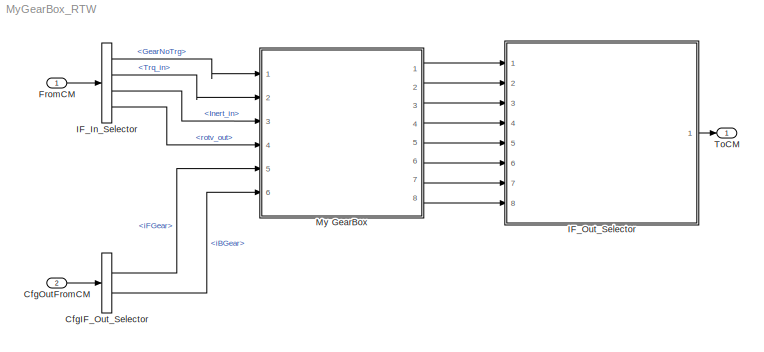
MODEL MyGearBox_RTW
KIND model
CONFIG InitFcn = vehicle = 'Car'; if ~length(which('cmcmd')), cmenv; end\nMyGearBox_RTW_bus
CONFIG PreLoadFcn = vehicle = 'Car'; if ~length(which('cmcmd')), cmenv; end\nMyGearBox_RTW_bus
BLOCK [BusSelector] CfgIF_Out_Selector
  OutputSignals = iFGear,iBGear
  Ports = [1, 2]
  SID = 45
BLOCK [Inport] CfgOutFromCM
  OutDataTypeStr = Bus: cmPTGearBoxCfgOut
  Port = 2
  SID = 8
BLOCK [Inport] FromCM
  OutDataTypeStr = Bus: cmPTGearBoxIn
  SID = 1
BLOCK [BusSelector] IF_In_Selector
  OutputSignals = GearNoTrg,Trq_in,Inert_in,rotv_out
  Ports = [1, 4]
  SID = 46
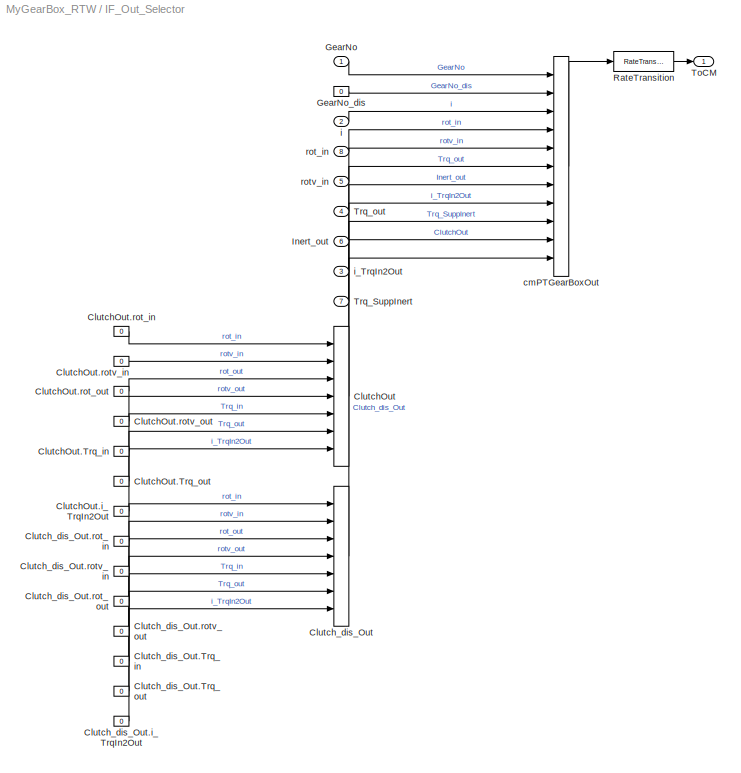
BLOCK [SubSystem] IF_Out_Selector
  OpenFcn = cmSignalSelect('SignalSelection_CB',gcb)
  Ports = [8, 1]
  RequestExecContextInheritance = off
  SID = 5
  UserData = DataTag0
  UserDataPersistent = on
BLOCK [BusCreator] IF_Out_Selector/ClutchOut
  InheritFromInputs = on
  Inputs = 7
  Ports = [7, 1]
  SID = 21
BLOCK [Constant] IF_Out_Selector/ClutchOut.Trq_in
  SID = 26
  Value = 0
BLOCK [Constant] IF_Out_Selector/ClutchOut.Trq_out
  SID = 27
  Value = 0
BLOCK [Constant] IF_Out_Selector/ClutchOut.i_TrqIn2Out
  SID = 28
  Value = 0
BLOCK [Constant] IF_Out_Selector/ClutchOut.rot_in
  SID = 22
  Value = 0
BLOCK [Constant] IF_Out_Selector/ClutchOut.rot_out
  SID = 24
  Value = 0
BLOCK [Constant] IF_Out_Selector/ClutchOut.rotv_in
  SID = 23
  Value = 0
BLOCK [Constant] IF_Out_Selector/ClutchOut.rotv_out
  SID = 25
  Value = 0
BLOCK [BusCreator] IF_Out_Selector/Clutch_dis_Out
  InheritFromInputs = on
  Inputs = 7
  Ports = [7, 1]
  SID = 29
BLOCK [Constant] IF_Out_Selector/Clutch_dis_Out.Trq_in
  SID = 34
  Value = 0
BLOCK [Constant] IF_Out_Selector/Clutch_dis_Out.Trq_out
  SID = 35
  Value = 0
BLOCK [Constant] IF_Out_Selector/Clutch_dis_Out.i_TrqIn2Out
  SID = 36
  Value = 0
BLOCK [Constant] IF_Out_Selector/Clutch_dis_Out.rot_in
  SID = 30
  Value = 0
BLOCK [Constant] IF_Out_Selector/Clutch_dis_Out.rot_out
  SID = 32
  Value = 0
BLOCK [Constant] IF_Out_Selector/Clutch_dis_Out.rotv_in
  SID = 31
  Value = 0
BLOCK [Constant] IF_Out_Selector/Clutch_dis_Out.rotv_out
  SID = 33
  Value = 0
BLOCK [Inport] IF_Out_Selector/GearNo
  SID = 37
BLOCK [Constant] IF_Out_Selector/GearNo_dis
  SID = 13
  Value = 0
BLOCK [Inport] IF_Out_Selector/Inert_out
  Port = 6
  SID = 42
BLOCK [RateTransition] IF_Out_Selector/RateTransition
  OutPortSampleTime = str2num(get_param(bdroot,'FixedStep'))
  SID = 6
BLOCK [Outport] IF_Out_Selector/ToCM
  SID = 7
  VectorParamsAs1DForOutWhenUnconnected = off
BLOCK [Inport] IF_Out_Selector/Trq_SuppInert
  Port = 7
  SID = 43
BLOCK [Inport] IF_Out_Selector/Trq_out
  Port = 4
  SID = 40
BLOCK [BusCreator] IF_Out_Selector/cmPTGearBoxOut
  InheritFromInputs = on
  Inputs = 11
  Ports = [11, 1]
  SID = 11
BLOCK [Inport] IF_Out_Selector/i
  Port = 2
  SID = 38
BLOCK [Inport] IF_Out_Selector/i_TrqIn2Out
  Port = 3
  SID = 39
BLOCK [Inport] IF_Out_Selector/rot_in
  Port = 8
  SID = 44
BLOCK [Inport] IF_Out_Selector/rotv_in
  Port = 5
  SID = 41
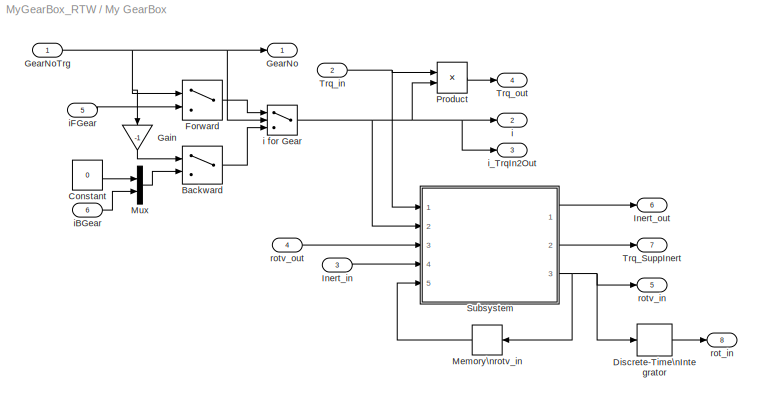
BLOCK [SubSystem] My GearBox
  Ports = [6, 8]
  RequestExecContextInheritance = off
  SID = 47
BLOCK [MultiPortSwitch] My GearBox/Backward
  DataPortOrder = Zero-based contiguous
  InputSameDT = off
  Inputs = 1
  Ports = [2, 1]
  SID = 54
  SaturateOnIntegerOverflow = off
  zeroidx = on
BLOCK [Constant] My GearBox/Constant
  SID = 55
  Value = 0
BLOCK [DiscreteIntegrator] My GearBox/Discrete-Time\nIntegrator
  ICPrevOutput = DiscIntNeverNeededParam
  ICPrevScaledInput = DiscIntNeverNeededParam
  IntegratorMethod = Integration: Backward Euler
  Ports = [1, 1]
  SID = 56
  SampleTime = -1
BLOCK [MultiPortSwitch] My GearBox/Forward
  InputSameDT = off
  Inputs = 1
  Ports = [2, 1]
  SID = 57
  SaturateOnIntegerOverflow = off
BLOCK [Gain] My GearBox/Gain
  Gain = -1
  NameLocation = left
  SID = 58
BLOCK [Outport] My GearBox/GearNo
  SID = 88
  VectorParamsAs1DForOutWhenUnconnected = off
BLOCK [Inport] My GearBox/GearNoTrg
  SID = 48
BLOCK [Inport] My GearBox/Inert_in
  Port = 3
  SID = 50
BLOCK [Outport] My GearBox/Inert_out
  Port = 6
  SID = 93
  VectorParamsAs1DForOutWhenUnconnected = off
BLOCK [Memory] My GearBox/Memory\nrotv_in
  SID = 59
BLOCK [Mux] My GearBox/Mux
  DisplayOption = bar
  Inputs = 2
  Ports = [2, 1]
  SID = 60
BLOCK [Product] My GearBox/Product
  Ports = [2, 1]
  RndMeth = Zero
  SID = 61
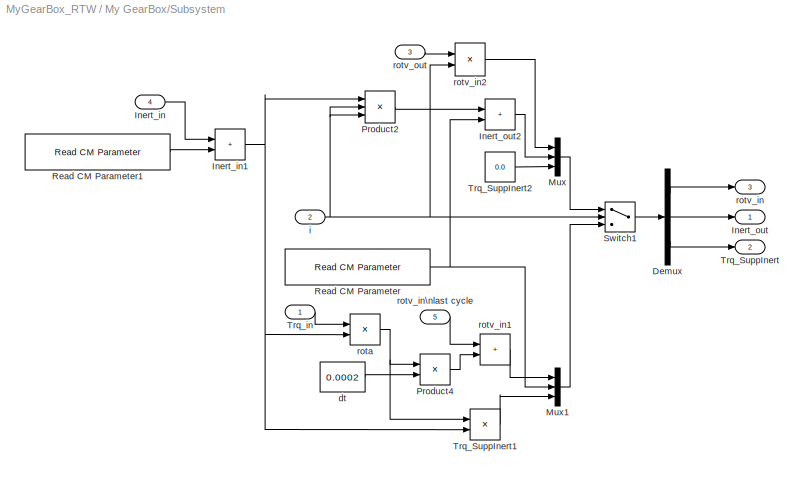
BLOCK [SubSystem] My GearBox/Subsystem
  Ports = [5, 3]
  RequestExecContextInheritance = off
  SID = 62
BLOCK [Demux] My GearBox/Subsystem/Demux
  Outputs = 3
  Ports = [1, 3]
  SID = 68
BLOCK [Inport] My GearBox/Subsystem/Inert_in
  Port = 4
  SID = 66
BLOCK [Sum] My GearBox/Subsystem/Inert_in1
  IconShape = rectangular
  Ports = [2, 1]
  SID = 69
BLOCK [Outport] My GearBox/Subsystem/Inert_out
  SID = 84
  VectorParamsAs1DForOutWhenUnconnected = off
BLOCK [Sum] My GearBox/Subsystem/Inert_out2
  IconShape = rectangular
  Ports = [2, 1]
  SID = 70
BLOCK [Mux] My GearBox/Subsystem/Mux
  DisplayOption = bar
  Inputs = 3
  Ports = [3, 1]
  SID = 71
BLOCK [Mux] My GearBox/Subsystem/Mux1
  DisplayOption = bar
  Inputs = 3
  Ports = [3, 1]
  SID = 72
BLOCK [Product] My GearBox/Subsystem/Product2
  Inputs = 3
  Ports = [3, 1]
  RndMeth = Zero
  SID = 73
BLOCK [Product] My GearBox/Subsystem/Product4
  Ports = [2, 1]
  RndMeth = Zero
  SID = 74
BLOCK [Reference] My GearBox/Subsystem/Read CM Parameter  REF=CarMaker4SL/Read CM Parameter
  Ports = [0, 1]
  SID = 75
  SourceBlock = CarMaker4SL/Read CM Parameter
  SourceProductName = CarMaker4SL
  SourceType = Read CarMaker Info File Parameter
  xdefaults = 0.05
  xfile = Vehicle
  xkey = PowerTrain.GearBox.I_out
  xmuxed = on
  xnout = 1
BLOCK [Reference] My GearBox/Subsystem/Read CM Parameter1  REF=CarMaker4SL/Read CM Parameter
  Ports = [0, 1]
  SID = 76
  SourceBlock = CarMaker4SL/Read CM Parameter
  SourceProductName = CarMaker4SL
  SourceType = Read CarMaker Info File Parameter
  xdefaults = 1e-4
  xfile = Vehicle
  xkey = PowerTrain.GearBox.I_in
  xmuxed = on
  xnout = 1
BLOCK [Switch] My GearBox/Subsystem/Switch1
  Criteria = u2 ~= 0
  InputSameDT = off
  SID = 77
  SaturateOnIntegerOverflow = off
BLOCK [Outport] My GearBox/Subsystem/Trq_SuppInert
  Port = 2
  SID = 85
  VectorParamsAs1DForOutWhenUnconnected = off
BLOCK [Product] My GearBox/Subsystem/Trq_SuppInert1
  Ports = [2, 1]
  RndMeth = Zero
  SID = 78
BLOCK [Constant] My GearBox/Subsystem/Trq_SuppInert2
  SID = 79
  Value = 0.0
BLOCK [Inport] My GearBox/Subsystem/Trq_in
  SID = 63
BLOCK [Constant] My GearBox/Subsystem/dt
  SID = 80
  Value = 0.0002
BLOCK [Inport] My GearBox/Subsystem/i
  Port = 2
  SID = 64
BLOCK [Product] My GearBox/Subsystem/rota
  Inputs = */
  Ports = [2, 1]
  SID = 81
BLOCK [Outport] My GearBox/Subsystem/rotv_in
  Port = 3
  SID = 86
  VectorParamsAs1DForOutWhenUnconnected = off
BLOCK [Sum] My GearBox/Subsystem/rotv_in1
  IconShape = rectangular
  Ports = [2, 1]
  SID = 82
BLOCK [Product] My GearBox/Subsystem/rotv_in2
  Ports = [2, 1]
  RndMeth = Zero
  SID = 83
BLOCK [Inport] My GearBox/Subsystem/rotv_in\nlast cycle
  Port = 5
  SID = 67
BLOCK [Inport] My GearBox/Subsystem/rotv_out
  Port = 3
  SID = 65
BLOCK [Outport] My GearBox/Trq_SuppInert
  Port = 7
  SID = 94
  VectorParamsAs1DForOutWhenUnconnected = off
BLOCK [Inport] My GearBox/Trq_in
  Port = 2
  SID = 49
BLOCK [Outport] My GearBox/Trq_out
  Port = 4
  SID = 91
  VectorParamsAs1DForOutWhenUnconnected = off
BLOCK [Outport] My GearBox/i
  Port = 2
  SID = 89
  VectorParamsAs1DForOutWhenUnconnected = off
BLOCK [Switch] My GearBox/i for Gear
  Criteria = u2 > Threshold
  InputSameDT = off
  SID = 87
  SaturateOnIntegerOverflow = off
BLOCK [Inport] My GearBox/iBGear
  Port = 6
  SID = 53
BLOCK [Inport] My GearBox/iFGear
  Port = 5
  SID = 52
BLOCK [Outport] My GearBox/i_TrqIn2Out
  Port = 3
  SID = 90
  VectorParamsAs1DForOutWhenUnconnected = off
BLOCK [Outport] My GearBox/rot_in
  Port = 8
  SID = 95
  VectorParamsAs1DForOutWhenUnconnected = off
BLOCK [Outport] My GearBox/rotv_in
  Port = 5
  SID = 92
  VectorParamsAs1DForOutWhenUnconnected = off
BLOCK [Inport] My GearBox/rotv_out
  Port = 4
  SID = 51
BLOCK [Outport] ToCM
  OutDataTypeStr = Bus: cmPTGearBoxOut
  SID = 4
  VectorParamsAs1DForOutWhenUnconnected = off
LINE CfgIF_Out_Selector:1 -> My GearBox:5
LINE CfgIF_Out_Selector:2 -> My GearBox:6
LINE CfgOutFromCM:1 -> CfgIF_Out_Selector:1
LINE FromCM:1 -> IF_In_Selector:1
LINE IF_In_Selector:1 -> My GearBox:1
LINE IF_In_Selector:2 -> My GearBox:2
LINE IF_In_Selector:3 -> My GearBox:3
LINE IF_In_Selector:4 -> My GearBox:4
LINE IF_Out_Selector/ClutchOut.Trq_in:1 -> IF_Out_Selector/ClutchOut:5
LINE IF_Out_Selector/ClutchOut.Trq_out:1 -> IF_Out_Selector/ClutchOut:6
LINE IF_Out_Selector/ClutchOut.i_TrqIn2Out:1 -> IF_Out_Selector/ClutchOut:7
LINE IF_Out_Selector/ClutchOut.rot_in:1 -> IF_Out_Selector/ClutchOut:1
LINE IF_Out_Selector/ClutchOut.rot_out:1 -> IF_Out_Selector/ClutchOut:3
LINE IF_Out_Selector/ClutchOut.rotv_in:1 -> IF_Out_Selector/ClutchOut:2
LINE IF_Out_Selector/ClutchOut.rotv_out:1 -> IF_Out_Selector/ClutchOut:4
LINE IF_Out_Selector/ClutchOut:1 -> IF_Out_Selector/cmPTGearBoxOut:10
LINE IF_Out_Selector/Clutch_dis_Out.Trq_in:1 -> IF_Out_Selector/Clutch_dis_Out:5
LINE IF_Out_Selector/Clutch_dis_Out.Trq_out:1 -> IF_Out_Selector/Clutch_dis_Out:6
LINE IF_Out_Selector/Clutch_dis_Out.i_TrqIn2Out:1 -> IF_Out_Selector/Clutch_dis_Out:7
LINE IF_Out_Selector/Clutch_dis_Out.rot_in:1 -> IF_Out_Selector/Clutch_dis_Out:1
LINE IF_Out_Selector/Clutch_dis_Out.rot_out:1 -> IF_Out_Selector/Clutch_dis_Out:3
LINE IF_Out_Selector/Clutch_dis_Out.rotv_in:1 -> IF_Out_Selector/Clutch_dis_Out:2
LINE IF_Out_Selector/Clutch_dis_Out.rotv_out:1 -> IF_Out_Selector/Clutch_dis_Out:4
LINE IF_Out_Selector/Clutch_dis_Out:1 -> IF_Out_Selector/cmPTGearBoxOut:11
LINE IF_Out_Selector/GearNo:1 -> IF_Out_Selector/cmPTGearBoxOut:1
LINE IF_Out_Selector/GearNo_dis:1 -> IF_Out_Selector/cmPTGearBoxOut:2
LINE IF_Out_Selector/Inert_out:1 -> IF_Out_Selector/cmPTGearBoxOut:7
LINE IF_Out_Selector/RateTransition:1 -> IF_Out_Selector/ToCM:1
LINE IF_Out_Selector/Trq_SuppInert:1 -> IF_Out_Selector/cmPTGearBoxOut:9
LINE IF_Out_Selector/Trq_out:1 -> IF_Out_Selector/cmPTGearBoxOut:6
LINE IF_Out_Selector/cmPTGearBoxOut:1 -> IF_Out_Selector/RateTransition:1
LINE IF_Out_Selector/i:1 -> IF_Out_Selector/cmPTGearBoxOut:3
LINE IF_Out_Selector/i_TrqIn2Out:1 -> IF_Out_Selector/cmPTGearBoxOut:8
LINE IF_Out_Selector/rot_in:1 -> IF_Out_Selector/cmPTGearBoxOut:4
LINE IF_Out_Selector/rotv_in:1 -> IF_Out_Selector/cmPTGearBoxOut:5
LINE IF_Out_Selector:1 -> ToCM:1
LINE My GearBox/Backward:1 -> My GearBox/i for Gear:3
LINE My GearBox/Constant:1 -> My GearBox/Mux:1
LINE My GearBox/Discrete-Time\nIntegrator:1 -> My GearBox/rot_in:1
LINE My GearBox/Forward:1 -> My GearBox/i for Gear:1
LINE My GearBox/Gain:1 -> My GearBox/Backward:1
NET My GearBox/GearNoTrg:1 -> My GearBox/Forward:1, My GearBox/Gain:1, My GearBox/GearNo:1, My GearBox/i for Gear:2
LINE My GearBox/Inert_in:1 -> My GearBox/Subsystem:4
LINE My GearBox/Memory\nrotv_in:1 -> My GearBox/Subsystem:5
LINE My GearBox/Mux:1 -> My GearBox/Backward:2
LINE My GearBox/Product:1 -> My GearBox/Trq_out:1
LINE My GearBox/Subsystem/Demux:1 -> My GearBox/Subsystem/rotv_in:1
LINE My GearBox/Subsystem/Demux:2 -> My GearBox/Subsystem/Inert_out:1
LINE My GearBox/Subsystem/Demux:3 -> My GearBox/Subsystem/Trq_SuppInert:1
NET My GearBox/Subsystem/Inert_in1:1 -> My GearBox/Subsystem/Product2:1, My GearBox/Subsystem/Trq_SuppInert1:2, My GearBox/Subsystem/rota:2
LINE My GearBox/Subsystem/Inert_in:1 -> My GearBox/Subsystem/Inert_in1:1
LINE My GearBox/Subsystem/Inert_out2:1 -> My GearBox/Subsystem/Mux:2
LINE My GearBox/Subsystem/Mux1:1 -> My GearBox/Subsystem/Switch1:3
LINE My GearBox/Subsystem/Mux:1 -> My GearBox/Subsystem/Switch1:1
LINE My GearBox/Subsystem/Product2:1 -> My GearBox/Subsystem/Inert_out2:1
LINE My GearBox/Subsystem/Product4:1 -> My GearBox/Subsystem/rotv_in1:2
LINE My GearBox/Subsystem/Read CM Parameter1:1 -> My GearBox/Subsystem/Inert_in1:2
NET My GearBox/Subsystem/Read CM Parameter:1 -> My GearBox/Subsystem/Inert_out2:2, My GearBox/Subsystem/Mux1:2
LINE My GearBox/Subsystem/Switch1:1 -> My GearBox/Subsystem/Demux:1
LINE My GearBox/Subsystem/Trq_SuppInert1:1 -> My GearBox/Subsystem/Mux1:3
LINE My GearBox/Subsystem/Trq_SuppInert2:1 -> My GearBox/Subsystem/Mux:3
LINE My GearBox/Subsystem/Trq_in:1 -> My GearBox/Subsystem/rota:1
LINE My GearBox/Subsystem/dt:1 -> My GearBox/Subsystem/Product4:2
NET My GearBox/Subsystem/i:1 -> My GearBox/Subsystem/Product2:2, My GearBox/Subsystem/Product2:3, My GearBox/Subsystem/Switch1:2, My GearBox/Subsystem/rotv_in2:2
NET My GearBox/Subsystem/rota:1 -> My GearBox/Subsystem/Product4:1, My GearBox/Subsystem/Trq_SuppInert1:1
LINE My GearBox/Subsystem/rotv_in1:1 -> My GearBox/Subsystem/Mux1:1
LINE My GearBox/Subsystem/rotv_in2:1 -> My GearBox/Subsystem/Mux:1
LINE My GearBox/Subsystem/rotv_in\nlast cycle:1 -> My GearBox/Subsystem/rotv_in1:1
LINE My GearBox/Subsystem/rotv_out:1 -> My GearBox/Subsystem/rotv_in2:1
LINE My GearBox/Subsystem:1 -> My GearBox/Inert_out:1
LINE My GearBox/Subsystem:2 -> My GearBox/Trq_SuppInert:1
NET My GearBox/Subsystem:3 -> My GearBox/Discrete-Time\nIntegrator:1, My GearBox/Memory\nrotv_in:1, My GearBox/rotv_in:1
NET My GearBox/Trq_in:1 -> My GearBox/Product:1, My GearBox/Subsystem:1
NET My GearBox/i for Gear:1 -> My GearBox/Product:2, My GearBox/Subsystem:2, My GearBox/i:1, My GearBox/i_TrqIn2Out:1
LINE My GearBox/iBGear:1 -> My GearBox/Mux:2
LINE My GearBox/iFGear:1 -> My GearBox/Forward:2
LINE My GearBox/rotv_out:1 -> My GearBox/Subsystem:3
LINE My GearBox:1 -> IF_Out_Selector:1
LINE My GearBox:2 -> IF_Out_Selector:2
LINE My GearBox:3 -> IF_Out_Selector:3
LINE My GearBox:4 -> IF_Out_Selector:4
LINE My GearBox:5 -> IF_Out_Selector:5
LINE My GearBox:6 -> IF_Out_Selector:6
LINE My GearBox:7 -> IF_Out_Selector:7
LINE My GearBox:8 -> IF_Out_Selector:8
note: NET lines group one-source signal fan-out (src -> all destinations, sorted); 1:1 wires keep LINE
